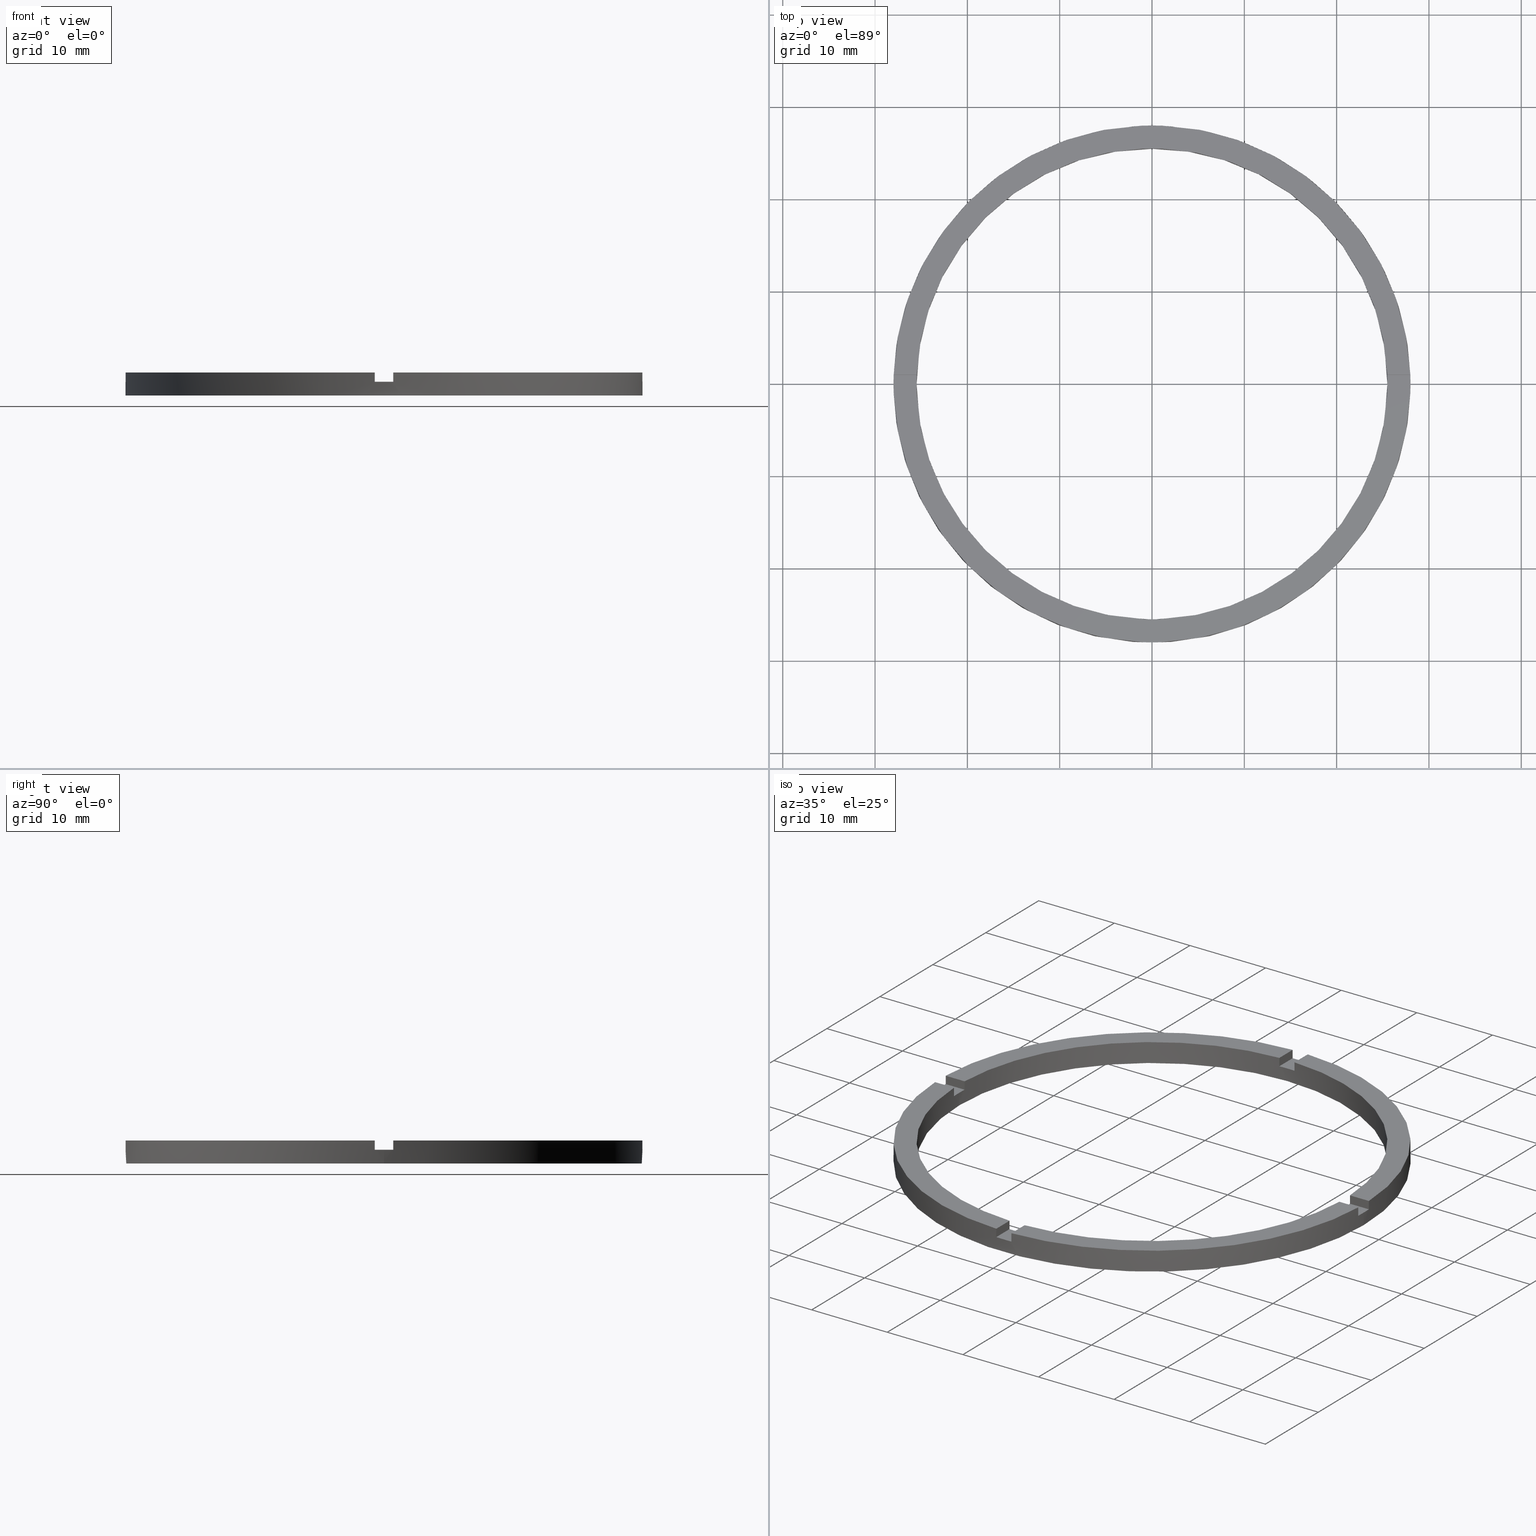
[diagram: canonical four-view strip — front | top / right | iso, engineering-drawing reading convention]
A machine part, canonical four-view strip (front | top / right | iso — engineering-drawing reading convention). The complete STEP part file that produces these views, byte-faithful:
ISO-10303-21;
HEADER;
FILE_DESCRIPTION (( 'STEP AP203' ),
    '1' );
FILE_NAME ('514116.step',
    '2024-12-26T02:39:02',
    ( 'MSI' ),
    ( '' ),
    'SwSTEP 2.0',
    'SolidWorks 2020',
    '' );
FILE_SCHEMA (( 'CONFIG_CONTROL_DESIGN' ));
ENDSEC;

DATA;
#1 = ORIENTED_EDGE ( 'NONE', *, *, #582, .T. ) ;
#2 = AXIS2_PLACEMENT_3D ( 'NONE', #164, #408, #340 ) ;
#3 = DIRECTION ( 'NONE',  ( 0.000000000000000000, 0.000000000000000000, 1.000000000000000000 ) ) ;
#4 = EDGE_CURVE ( 'NONE', #600, #767, #463, .T. ) ;
#5 = CARTESIAN_POINT ( 'NONE',  ( 0.9999999999998389066, -18.00000000000018119, 1.500000000000000000 ) ) ;
#6 = CARTESIAN_POINT ( 'NONE',  ( 0.000000000000000000, 0.000000000000000000, 2.500000000000000000 ) ) ;
#7 = ORIENTED_EDGE ( 'NONE', *, *, #49, .T. ) ;
#8 = CARTESIAN_POINT ( 'NONE',  ( 0.000000000000000000, 0.000000000000000000, 0.000000000000000000 ) ) ;
#9 = ORIENTED_EDGE ( 'NONE', *, *, #267, .T. ) ;
#10 = DIRECTION ( 'NONE',  ( 0.000000000000000000, 0.000000000000000000, 1.000000000000000000 ) ) ;
#11 = CARTESIAN_POINT ( 'NONE',  ( 0.000000000000000000, 0.000000000000000000, 1.500000000000000000 ) ) ;
#12 = DIRECTION ( 'NONE',  ( 0.000000000000000000, 0.000000000000000000, 1.000000000000000000 ) ) ;
#13 = EDGE_CURVE ( 'NONE', #81, #337, #721, .T. ) ;
#14 = EDGE_CURVE ( 'NONE', #252, #517, #709, .T. ) ;
#15 = CARTESIAN_POINT ( 'NONE',  ( -1.000000000000160316, -25.48038461248180653, 1.500000000000000000 ) ) ;
#16 = VERTEX_POINT ( 'NONE', #401 ) ;
#17 = DIRECTION ( 'NONE',  ( 1.000000000000000000, 0.000000000000000000, -0.000000000000000000 ) ) ;
#18 = VERTEX_POINT ( 'NONE', #433 ) ;
#19 = CARTESIAN_POINT ( 'NONE',  ( -25.50000000000000000, 0.000000000000000000, 2.500000000000000000 ) ) ;
#20 = EDGE_LOOP ( 'NONE', ( #7, #231, #777, #761 ) ) ;
#21 = AXIS2_PLACEMENT_3D ( 'NONE', #50, #244, #193 ) ;
#22 = DIRECTION ( 'NONE',  ( -1.000000000000000000, -4.336808689942018352E-17, 0.000000000000000000 ) ) ;
#23 = CARTESIAN_POINT ( 'NONE',  ( 0.9999999999999735767, 27.98213715926644696, 2.500000000000000000 ) ) ;
#24 = ORIENTED_EDGE ( 'NONE', *, *, #511, .T. ) ;
#25 = CARTESIAN_POINT ( 'NONE',  ( -18.00000000000018474, 0.9999999999999749090, 1.500000000000000000 ) ) ;
#26 = ADVANCED_FACE ( 'NONE', ( #192 ), #398, .F. ) ;
#27 = EDGE_CURVE ( 'NONE', #476, #204, #451, .T. ) ;
#28 = CARTESIAN_POINT ( 'NONE',  ( 27.98213715926645051, 0.9999999999998430145, 1.500000000000000000 ) ) ;
#29 = ORIENTED_EDGE ( 'NONE', *, *, #4, .F. ) ;
#30 = DIRECTION ( 'NONE',  ( 1.000000000000000000, 0.000000000000000000, 0.000000000000000000 ) ) ;
#31 = ORIENTED_EDGE ( 'NONE', *, *, #303, .T. ) ;
#32 = VERTEX_POINT ( 'NONE', #650 ) ;
#33 = CARTESIAN_POINT ( 'NONE',  ( 18.00000000000000000, -1.000000000000157430, 1.500000000000000000 ) ) ;
#34 = DIRECTION ( 'NONE',  ( -1.000000000000000000, -4.336808689942018352E-17, -0.000000000000000000 ) ) ;
#35 = CARTESIAN_POINT ( 'NONE',  ( 0.9999999999999735767, 25.48038461248181363, 2.500000000000000000 ) ) ;
#36 = APPROVAL_STATUS ( 'not_yet_approved' ) ;
#37 = PRODUCT_DEFINITION ( 'δ֪', '', #183, #700 ) ;
#38 = CARTESIAN_POINT ( 'NONE',  ( 0.000000000000000000, 0.000000000000000000, 1.500000000000000000 ) ) ;
#39 = CARTESIAN_POINT ( 'NONE',  ( 0.000000000000000000, 0.000000000000000000, 2.500000000000000000 ) ) ;
#40 = CC_DESIGN_DATE_AND_TIME_ASSIGNMENT ( #608, #412, ( #564 ) ) ;
#41 = EDGE_CURVE ( 'NONE', #32, #81, #713, .T. ) ;
#42 = AXIS2_PLACEMENT_3D ( 'NONE', #439, #690, #152 ) ;
#43 = LINE ( 'NONE', #288, #590 ) ;
#44 = VECTOR ( 'NONE', #462, 1000.000000000000000 ) ;
#45 = CIRCLE ( 'NONE', #179, 25.50000000000000000 ) ;
#46 = APPROVAL_ROLE ( '' ) ;
#47 = LINE ( 'NONE', #404, #55 ) ;
#48 = CIRCLE ( 'NONE', #664, 28.00000000000000000 ) ;
#49 = EDGE_CURVE ( 'NONE', #70, #355, #715, .T. ) ;
#50 = CARTESIAN_POINT ( 'NONE',  ( 0.000000000000000000, 0.000000000000000000, 1.500000000000000000 ) ) ;
#51 = EDGE_CURVE ( 'NONE', #258, #767, #639, .T. ) ;
#52 = VECTOR ( 'NONE', #34, 1000.000000000000000 ) ;
#53 = VECTOR ( 'NONE', #737, 1000.000000000000000 ) ;
#54 = DIRECTION ( 'NONE',  ( 1.000000000000000000, 0.000000000000000000, 0.000000000000000000 ) ) ;
#55 = VECTOR ( 'NONE', #157, 1000.000000000000000 ) ;
#56 = FACE_OUTER_BOUND ( 'NONE', #503, .T. ) ;
#57 = LINE ( 'NONE', #540, #68 ) ;
#58 = CIRCLE ( 'NONE', #383, 25.50000000000000000 ) ;
#59 = CARTESIAN_POINT ( 'NONE',  ( 0.000000000000000000, 0.000000000000000000, 0.000000000000000000 ) ) ;
#60 = FACE_OUTER_BOUND ( 'NONE', #373, .T. ) ;
#61 = FACE_OUTER_BOUND ( 'NONE', #246, .T. ) ;
#62 = CIRCLE ( 'NONE', #314, 25.50000000000000000 ) ;
#63 = ORIENTED_EDGE ( 'NONE', *, *, #670, .F. ) ;
#64 = FACE_OUTER_BOUND ( 'NONE', #241, .T. ) ;
#65 = ORIENTED_EDGE ( 'NONE', *, *, #523, .F. ) ;
#66 = CIRCLE ( 'NONE', #569, 28.00000000000000000 ) ;
#67 = ADVANCED_FACE ( 'NONE', ( #125 ), #518, .T. ) ;
#68 = VECTOR ( 'NONE', #648, 1000.000000000000000 ) ;
#69 = DIRECTION ( 'NONE',  ( 1.000000000000000000, 4.336808689942018352E-17, 0.000000000000000000 ) ) ;
#70 = VERTEX_POINT ( 'NONE', #256 ) ;
#71 = FACE_OUTER_BOUND ( 'NONE', #495, .T. ) ;
#72 = EDGE_LOOP ( 'NONE', ( #287, #494, #363, #759, #486, #477 ) ) ;
#73 = FACE_OUTER_BOUND ( 'NONE', #20, .T. ) ;
#74 = DIRECTION ( 'NONE',  ( 0.000000000000000000, 0.000000000000000000, 1.000000000000000000 ) ) ;
#75 = AXIS2_PLACEMENT_3D ( 'NONE', #680, #426, #146 ) ;
#76 = LOCAL_TIME ( 10, 39, 2.000000000000000000, #624 ) ;
#77 = CARTESIAN_POINT ( 'NONE',  ( 0.000000000000000000, 0.000000000000000000, 1.500000000000000000 ) ) ;
#78 = CARTESIAN_POINT ( 'NONE',  ( 25.50000000000000000, 3.122849337825750222E-15, 1.500000000000000000 ) ) ;
#79 = ADVANCED_FACE ( 'NONE', ( #369 ), #372, .T. ) ;
#80 = DIRECTION ( 'NONE',  ( -1.000000000000000000, 0.000000000000000000, 0.000000000000000000 ) ) ;
#81 = VERTEX_POINT ( 'NONE', #117 ) ;
#82 = ORIENTED_EDGE ( 'NONE', *, *, #145, .F. ) ;
#83 = DIRECTION ( 'NONE',  ( 0.000000000000000000, 0.000000000000000000, 1.000000000000000000 ) ) ;
#84 = DATE_AND_TIME ( #92, #95 ) ;
#85 = ORIENTED_EDGE ( 'NONE', *, *, #763, .F. ) ;
#86 = VERTEX_POINT ( 'NONE', #221 ) ;
#87 = LOCAL_TIME ( 10, 39, 2.000000000000000000, #596 ) ;
#88 = DIRECTION ( 'NONE',  ( -1.301042606982605567E-16, 1.000000000000000000, 0.000000000000000000 ) ) ;
#89 = DIRECTION ( 'NONE',  ( -0.000000000000000000, -0.000000000000000000, -1.000000000000000000 ) ) ;
#90 = EDGE_LOOP ( 'NONE', ( #207, #9, #498, #119 ) ) ;
#91 = EDGE_CURVE ( 'NONE', #252, #453, #379, .T. ) ;
#92 = CALENDAR_DATE ( 2024, 26, 12 ) ;
#93 = ORIENTED_EDGE ( 'NONE', *, *, #580, .F. ) ;
#94 = CARTESIAN_POINT ( 'NONE',  ( -27.98213715926644340, -1.000000000000026867, 2.500000000000000000 ) ) ;
#95 = LOCAL_TIME ( 10, 39, 2.000000000000000000, #387 ) ;
#96 = EDGE_CURVE ( 'NONE', #215, #600, #354, .T. ) ;
#97 = VERTEX_POINT ( 'NONE', #285 ) ;
#98 = DIRECTION ( 'NONE',  ( 0.000000000000000000, 0.000000000000000000, 1.000000000000000000 ) ) ;
#99 = LINE ( 'NONE', #435, #623 ) ;
#100 = LINE ( 'NONE', #250, #619 ) ;
#101 = CARTESIAN_POINT ( 'NONE',  ( 0.000000000000000000, 0.000000000000000000, 2.500000000000000000 ) ) ;
#102 = AXIS2_PLACEMENT_3D ( 'NONE', #170, #416, #280 ) ;
#103 = VERTEX_POINT ( 'NONE', #410 ) ;
#104 = FACE_OUTER_BOUND ( 'NONE', #209, .T. ) ;
#105 = AXIS2_PLACEMENT_3D ( 'NONE', #122, #174, #643 ) ;
#106 = ORIENTED_EDGE ( 'NONE', *, *, #399, .F. ) ;
#107 = CARTESIAN_POINT ( 'NONE',  ( 0.000000000000000000, 0.000000000000000000, 0.000000000000000000 ) ) ;
#108 = LINE ( 'NONE', #306, #367 ) ;
#109 = ADVANCED_FACE ( 'NONE', ( #604 ), #128, .T. ) ;
#110 = ORIENTED_EDGE ( 'NONE', *, *, #622, .T. ) ;
#111 =( LENGTH_UNIT ( ) NAMED_UNIT ( * ) SI_UNIT ( .MILLI., .METRE. ) );
#112 = VECTOR ( 'NONE', #168, 1000.000000000000000 ) ;
#113 = PERSON_AND_ORGANIZATION ( #698, #385 ) ;
#114 = EDGE_LOOP ( 'NONE', ( #235, #227, #65, #491 ) ) ;
#115 = VECTOR ( 'NONE', #682, 1000.000000000000000 ) ;
#116 = COORDINATED_UNIVERSAL_TIME_OFFSET ( 8, 0, .AHEAD. ) ;
#117 = CARTESIAN_POINT ( 'NONE',  ( -27.98213715926644696, 0.9999999999999731326, 1.500000000000000000 ) ) ;
#118 = SECURITY_CLASSIFICATION_LEVEL ( 'unclassified' ) ;
#119 = ORIENTED_EDGE ( 'NONE', *, *, #171, .F. ) ;
#120 = LINE ( 'NONE', #300, #115 ) ;
#121 = ORIENTED_EDGE ( 'NONE', *, *, #27, .T. ) ;
#122 = CARTESIAN_POINT ( 'NONE',  ( 0.000000000000000000, 0.000000000000000000, 2.500000000000000000 ) ) ;
#123 = CIRCLE ( 'NONE', #352, 28.00000000000000000 ) ;
#124 = APPROVAL_PERSON_ORGANIZATION ( #636, #747, #529 ) ;
#125 = FACE_OUTER_BOUND ( 'NONE', #519, .T. ) ;
#126 = LINE ( 'NONE', #452, #607 ) ;
#127 = DATE_AND_TIME ( #378, #87 ) ;
#128 = PLANE ( 'NONE',  #102 ) ;
#129 = MECHANICAL_CONTEXT ( 'NONE', #141, 'mechanical' ) ;
#130 = ORIENTED_EDGE ( 'NONE', *, *, #673, .T. ) ;
#131 = LINE ( 'NONE', #425, #359 ) ;
#132 = DIRECTION ( 'NONE',  ( 0.000000000000000000, 0.000000000000000000, 1.000000000000000000 ) ) ;
#133 = PERSON_AND_ORGANIZATION ( #698, #385 ) ;
#134 = APPROVAL_PERSON_ORGANIZATION ( #641, #461, #46 ) ;
#135 = DIRECTION ( 'NONE',  ( -0.000000000000000000, -0.000000000000000000, -1.000000000000000000 ) ) ;
#136 = VECTOR ( 'NONE', #289, 1000.000000000000000 ) ;
#137 = CARTESIAN_POINT ( 'NONE',  ( 28.00000000000000000, 3.429011037612589276E-15, 2.500000000000000000 ) ) ;
#138 = LINE ( 'NONE', #705, #136 ) ;
#139 = CC_DESIGN_SECURITY_CLASSIFICATION ( #564, ( #183 ) ) ;
#140 = AXIS2_PLACEMENT_3D ( 'NONE', #675, #248, #142 ) ;
#141 = APPLICATION_CONTEXT ( 'configuration controlled 3d designs of mechanical parts and assemblies' ) ;
#142 = DIRECTION ( 'NONE',  ( -1.000000000000000000, -1.734723475976807341E-16, 0.000000000000000000 ) ) ;
#143 = EDGE_CURVE ( 'NONE', #215, #204, #126, .T. ) ;
#144 = CARTESIAN_POINT ( 'NONE',  ( -28.00000000000000000, 0.000000000000000000, 1.500000000000000000 ) ) ;
#145 = EDGE_CURVE ( 'NONE', #222, #769, #382, .T. ) ;
#146 = DIRECTION ( 'NONE',  ( 1.000000000000000000, 0.000000000000000000, 0.000000000000000000 ) ) ;
#147 = AXIS2_PLACEMENT_3D ( 'NONE', #101, #334, #753 ) ;
#148 = ADVANCED_FACE ( 'NONE', ( #356 ), #406, .F. ) ;
#149 = CARTESIAN_POINT ( 'NONE',  ( 0.000000000000000000, 0.000000000000000000, 1.500000000000000000 ) ) ;
#150 = EDGE_CURVE ( 'NONE', #103, #18, #99, .T. ) ;
#151 = CARTESIAN_POINT ( 'NONE',  ( 0.000000000000000000, 0.000000000000000000, 2.500000000000000000 ) ) ;
#152 = DIRECTION ( 'NONE',  ( 1.000000000000000000, 0.000000000000000000, -0.000000000000000000 ) ) ;
#153 = DIRECTION ( 'NONE',  ( 0.000000000000000000, 0.000000000000000000, 1.000000000000000000 ) ) ;
#154 = PLANE ( 'NONE',  #480 ) ;
#155 = DIRECTION ( 'NONE',  ( 1.000000000000000000, 4.336808689942018352E-17, 0.000000000000000000 ) ) ;
#156 = CARTESIAN_POINT ( 'NONE',  ( 18.00000000000000000, 0.9999999999998425704, 2.500000000000000000 ) ) ;
#157 = DIRECTION ( 'NONE',  ( 1.000000000000000000, 1.734723475976807341E-16, -0.000000000000000000 ) ) ;
#158 = DIRECTION ( 'NONE',  ( -1.000000000000000000, -1.734723475976807341E-16, 0.000000000000000000 ) ) ;
#159 = CARTESIAN_POINT ( 'NONE',  ( 0.000000000000000000, 0.000000000000000000, 1.500000000000000000 ) ) ;
#160 = CARTESIAN_POINT ( 'NONE',  ( 0.000000000000000000, 0.000000000000000000, 1.500000000000000000 ) ) ;
#161 = DIRECTION ( 'NONE',  ( 1.000000000000000000, 1.734723475976807341E-16, -0.000000000000000000 ) ) ;
#162 = CC_DESIGN_APPROVAL ( #461, ( #37 ) ) ;
#163 = EDGE_CURVE ( 'NONE', #18, #274, #635, .T. ) ;
#164 = CARTESIAN_POINT ( 'NONE',  ( 0.9999999999999735767, 18.00000000000000355, 1.500000000000000000 ) ) ;
#165 = AXIS2_PLACEMENT_3D ( 'NONE', #553, #264, #22 ) ;
#166 = EDGE_CURVE ( 'NONE', #706, #750, #350, .T. ) ;
#167 = DIRECTION ( 'NONE',  ( 1.000000000000000000, 0.000000000000000000, 0.000000000000000000 ) ) ;
#168 = DIRECTION ( 'NONE',  ( 0.000000000000000000, 0.000000000000000000, 1.000000000000000000 ) ) ;
#169 = DIRECTION ( 'NONE',  ( -0.000000000000000000, 0.000000000000000000, 1.000000000000000000 ) ) ;
#170 = CARTESIAN_POINT ( 'NONE',  ( 0.000000000000000000, 0.000000000000000000, 1.500000000000000000 ) ) ;
#171 = EDGE_CURVE ( 'NONE', #258, #86, #374, .T. ) ;
#172 = CARTESIAN_POINT ( 'NONE',  ( 0.000000000000000000, 0.000000000000000000, 1.500000000000000000 ) ) ;
#173 = EDGE_CURVE ( 'NONE', #512, #769, #123, .T. ) ;
#174 = DIRECTION ( 'NONE',  ( 0.000000000000000000, 0.000000000000000000, 1.000000000000000000 ) ) ;
#175 = DIRECTION ( 'NONE',  ( -1.000000000000000000, 0.000000000000000000, 0.000000000000000000 ) ) ;
#176 = AXIS2_PLACEMENT_3D ( 'NONE', #321, #640, #80 ) ;
#177 = CARTESIAN_POINT ( 'NONE',  ( 0.000000000000000000, 0.000000000000000000, 2.500000000000000000 ) ) ;
#178 = PERSON_AND_ORGANIZATION_ROLE ( 'creator' ) ;
#179 = AXIS2_PLACEMENT_3D ( 'NONE', #8, #74, #54 ) ;
#180 = DIRECTION ( 'NONE',  ( 4.336808689942018352E-17, -1.000000000000000000, 0.000000000000000000 ) ) ;
#181 = CYLINDRICAL_SURFACE ( 'NONE', #176, 25.50000000000000000 ) ;
#182 = FACE_OUTER_BOUND ( 'NONE', #599, .T. ) ;
#183 = PRODUCT_DEFINITION_FORMATION_WITH_SPECIFIED_SOURCE ( '�κ�', '', #524, .NOT_KNOWN. ) ;
#184 = CARTESIAN_POINT ( 'NONE',  ( 0.9999999999998389066, -18.00000000000018119, 2.500000000000000000 ) ) ;
#185 = EDGE_CURVE ( 'NONE', #222, #282, #377, .T. ) ;
#186 = ORIENTED_EDGE ( 'NONE', *, *, #296, .T. ) ;
#187 = LINE ( 'NONE', #200, #707 ) ;
#188 = DIRECTION ( 'NONE',  ( 1.000000000000000000, 0.000000000000000000, -0.000000000000000000 ) ) ;
#189 = VECTOR ( 'NONE', #509, 1000.000000000000000 ) ;
#190 = AXIS2_PLACEMENT_3D ( 'NONE', #177, #672, #581 ) ;
#191 = LINE ( 'NONE', #683, #189 ) ;
#192 = FACE_OUTER_BOUND ( 'NONE', #90, .T. ) ;
#193 = DIRECTION ( 'NONE',  ( 1.000000000000000000, 0.000000000000000000, 0.000000000000000000 ) ) ;
#194 = ORIENTED_EDGE ( 'NONE', *, *, #511, .F. ) ;
#195 = VECTOR ( 'NONE', #158, 1000.000000000000000 ) ;
#196 = ORIENTED_EDGE ( 'NONE', *, *, #748, .F. ) ;
#197 = PLANE ( 'NONE',  #42 ) ;
#198 = DIRECTION ( 'NONE',  ( 1.000000000000000000, 0.000000000000000000, 0.000000000000000000 ) ) ;
#199 = CARTESIAN_POINT ( 'NONE',  ( 18.00000000000000000, 0.9999999999998425704, 1.500000000000000000 ) ) ;
#200 = CARTESIAN_POINT ( 'NONE',  ( -25.48038461248181363, 0.9999999999999735767, 2.500000000000000000 ) ) ;
#201 = DIRECTION ( 'NONE',  ( 1.000000000000000000, 0.000000000000000000, 0.000000000000000000 ) ) ;
#202 = CARTESIAN_POINT ( 'NONE',  ( 0.000000000000000000, 0.000000000000000000, 2.500000000000000000 ) ) ;
#203 = DIRECTION ( 'NONE',  ( 1.000000000000000000, 0.000000000000000000, 0.000000000000000000 ) ) ;
#204 = VERTEX_POINT ( 'NONE', #638 ) ;
#205 =( NAMED_UNIT ( * ) SI_UNIT ( $, .STERADIAN. ) SOLID_ANGLE_UNIT ( ) );
#206 = EDGE_CURVE ( 'NONE', #236, #543, #131, .T. ) ;
#207 = ORIENTED_EDGE ( 'NONE', *, *, #748, .T. ) ;
#208 = CARTESIAN_POINT ( 'NONE',  ( 0.000000000000000000, 0.000000000000000000, 2.500000000000000000 ) ) ;
#209 = EDGE_LOOP ( 'NONE', ( #776, #615, #31, #29 ) ) ;
#210 = ORIENTED_EDGE ( 'NONE', *, *, #718, .F. ) ;
#211 = CARTESIAN_POINT ( 'NONE',  ( 0.000000000000000000, 0.000000000000000000, 2.500000000000000000 ) ) ;
#212 = ORIENTED_EDGE ( 'NONE', *, *, #449, .T. ) ;
#213 = ORIENTED_EDGE ( 'NONE', *, *, #91, .F. ) ;
#214 = DIRECTION ( 'NONE',  ( 1.000000000000000000, 4.336808689942018352E-17, 0.000000000000000000 ) ) ;
#215 = VERTEX_POINT ( 'NONE', #782 ) ;
#216 = DIRECTION ( 'NONE',  ( 0.000000000000000000, 0.000000000000000000, 1.000000000000000000 ) ) ;
#217 = ORIENTED_EDGE ( 'NONE', *, *, #51, .T. ) ;
#218 = ORIENTED_EDGE ( 'NONE', *, *, #185, .F. ) ;
#219 = AXIS2_PLACEMENT_3D ( 'NONE', #160, #516, #693 ) ;
#220 = EDGE_LOOP ( 'NONE', ( #770, #239, #341, #376, #755, #610, #729, #475, #218, #754, #489, #233 ) ) ;
#221 = CARTESIAN_POINT ( 'NONE',  ( 0.9999999999998402389, -27.98213715926645051, 1.500000000000000000 ) ) ;
#222 = VERTEX_POINT ( 'NONE', #546 ) ;
#223 = CARTESIAN_POINT ( 'NONE',  ( 0.9999999999999735767, 25.48038461248181363, 2.500000000000000000 ) ) ;
#224 = ORIENTED_EDGE ( 'NONE', *, *, #580, .T. ) ;
#225 = APPROVAL ( #36, 'δָ��' ) ;
#226 = ORIENTED_EDGE ( 'NONE', *, *, #14, .F. ) ;
#227 = ORIENTED_EDGE ( 'NONE', *, *, #242, .T. ) ;
#228 = ORIENTED_EDGE ( 'NONE', *, *, #389, .F. ) ;
#229 = CARTESIAN_POINT ( 'NONE',  ( 0.000000000000000000, 0.000000000000000000, 2.500000000000000000 ) ) ;
#230 = EDGE_CURVE ( 'NONE', #478, #458, #616, .T. ) ;
#231 = ORIENTED_EDGE ( 'NONE', *, *, #389, .T. ) ;
#232 = PERSON_AND_ORGANIZATION_ROLE ( 'design_owner' ) ;
#233 = ORIENTED_EDGE ( 'NONE', *, *, #670, .T. ) ;
#234 = AXIS2_PLACEMENT_3D ( 'NONE', #151, #299, #679 ) ;
#235 = ORIENTED_EDGE ( 'NONE', *, *, #419, .T. ) ;
#236 = VERTEX_POINT ( 'NONE', #144 ) ;
#237 = ORIENTED_EDGE ( 'NONE', *, *, #774, .T. ) ;
#238 = PERSON_AND_ORGANIZATION_ROLE ( 'design_supplier' ) ;
#239 = ORIENTED_EDGE ( 'NONE', *, *, #592, .T. ) ;
#240 = ORIENTED_EDGE ( 'NONE', *, *, #41, .T. ) ;
#241 = EDGE_LOOP ( 'NONE', ( #467, #723, #279, #1 ) ) ;
#242 = EDGE_CURVE ( 'NONE', #86, #506, #100, .T. ) ;
#243 = ORIENTED_EDGE ( 'NONE', *, *, #270, .F. ) ;
#244 = DIRECTION ( 'NONE',  ( 0.000000000000000000, -0.000000000000000000, 1.000000000000000000 ) ) ;
#245 = ORIENTED_EDGE ( 'NONE', *, *, #592, .F. ) ;
#246 = EDGE_LOOP ( 'NONE', ( #744, #24, #243, #63 ) ) ;
#247 = ORIENTED_EDGE ( 'NONE', *, *, #303, .F. ) ;
#248 = DIRECTION ( 'NONE',  ( -1.734723475976807341E-16, 1.000000000000000000, 0.000000000000000000 ) ) ;
#249 = ORIENTED_EDGE ( 'NONE', *, *, #393, .F. ) ;
#250 = CARTESIAN_POINT ( 'NONE',  ( 0.9999999999998389066, -18.00000000000018119, 1.500000000000000000 ) ) ;
#251 = ORIENTED_EDGE ( 'NONE', *, *, #173, .T. ) ;
#252 = VERTEX_POINT ( 'NONE', #538 ) ;
#253 = DIRECTION ( 'NONE',  ( -1.301042606982605567E-16, 1.000000000000000000, -0.000000000000000000 ) ) ;
#254 = ADVANCED_FACE ( 'NONE', ( #104 ), #154, .F. ) ;
#255 = VERTEX_POINT ( 'NONE', #78 ) ;
#256 = CARTESIAN_POINT ( 'NONE',  ( -27.98213715926644340, -1.000000000000026867, 2.500000000000000000 ) ) ;
#257 = CARTESIAN_POINT ( 'NONE',  ( 0.9999999999998402389, -27.98213715926645051, 2.500000000000000000 ) ) ;
#258 = VERTEX_POINT ( 'NONE', #483 ) ;
#259 = DIRECTION ( 'NONE',  ( 1.734723475976807341E-16, -1.000000000000000000, 0.000000000000000000 ) ) ;
#260 = EDGE_CURVE ( 'NONE', #468, #16, #108, .T. ) ;
#261 = CARTESIAN_POINT ( 'NONE',  ( 18.00000000000000000, -1.000000000000157430, 1.500000000000000000 ) ) ;
#262 = ORIENTED_EDGE ( 'NONE', *, *, #697, .F. ) ;
#263 = ORIENTED_EDGE ( 'NONE', *, *, #419, .F. ) ;
#264 = DIRECTION ( 'NONE',  ( -4.336808689942018352E-17, 1.000000000000000000, 0.000000000000000000 ) ) ;
#265 = EDGE_CURVE ( 'NONE', #255, #606, #626, .T. ) ;
#266 = DIRECTION ( 'NONE',  ( 1.000000000000000000, 0.000000000000000000, 0.000000000000000000 ) ) ;
#267 = EDGE_CURVE ( 'NONE', #476, #506, #120, .T. ) ;
#268 = DIRECTION ( 'NONE',  ( 0.000000000000000000, -0.000000000000000000, 1.000000000000000000 ) ) ;
#269 = DIRECTION ( 'NONE',  ( -1.000000000000000000, 0.000000000000000000, 0.000000000000000000 ) ) ;
#270 = EDGE_CURVE ( 'NONE', #458, #371, #440, .T. ) ;
#271 = DIRECTION ( 'NONE',  ( -1.000000000000000000, -1.301042606982605567E-16, 0.000000000000000000 ) ) ;
#272 = ORIENTED_EDGE ( 'NONE', *, *, #206, .T. ) ;
#273 = AXIS2_PLACEMENT_3D ( 'NONE', #11, #611, #724 ) ;
#274 = VERTEX_POINT ( 'NONE', #625 ) ;
#275 = PLANE ( 'NONE',  #165 ) ;
#276 = CARTESIAN_POINT ( 'NONE',  ( 0.000000000000000000, 0.000000000000000000, 2.500000000000000000 ) ) ;
#277 = AXIS2_PLACEMENT_3D ( 'NONE', #77, #268, #507 ) ;
#278 = ADVANCED_FACE ( 'NONE', ( #441 ), #181, .F. ) ;
#279 = ORIENTED_EDGE ( 'NONE', *, *, #49, .F. ) ;
#280 = DIRECTION ( 'NONE',  ( 1.000000000000000000, 0.000000000000000000, -0.000000000000000000 ) ) ;
#281 = DIRECTION ( 'NONE',  ( 0.000000000000000000, 0.000000000000000000, 1.000000000000000000 ) ) ;
#282 = VERTEX_POINT ( 'NONE', #743 ) ;
#283 = ORIENTED_EDGE ( 'NONE', *, *, #515, .T. ) ;
#284 = DIRECTION ( 'NONE',  ( 1.000000000000000000, 0.000000000000000000, 0.000000000000000000 ) ) ;
#285 = CARTESIAN_POINT ( 'NONE',  ( 25.48038461248181719, 0.9999999999998427924, 2.500000000000000000 ) ) ;
#286 = CARTESIAN_POINT ( 'NONE',  ( 0.000000000000000000, 0.000000000000000000, 1.500000000000000000 ) ) ;
#287 = ORIENTED_EDGE ( 'NONE', *, *, #327, .T. ) ;
#288 = CARTESIAN_POINT ( 'NONE',  ( 0.9999999999999735767, 18.00000000000000355, 2.500000000000000000 ) ) ;
#289 = DIRECTION ( 'NONE',  ( -0.000000000000000000, -0.000000000000000000, -1.000000000000000000 ) ) ;
#290 = DIRECTION ( 'NONE',  ( 0.000000000000000000, 1.000000000000000000, 0.000000000000000000 ) ) ;
#291 = CC_DESIGN_PERSON_AND_ORGANIZATION_ASSIGNMENT ( #375, #417, ( #183 ) ) ;
#292 = EDGE_LOOP ( 'NONE', ( #262, #731, #539, #595 ) ) ;
#293 = AXIS2_PLACEMENT_3D ( 'NONE', #107, #661, #438 ) ;
#294 = EDGE_LOOP ( 'NONE', ( #735, #738, #368, #481 ) ) ;
#295 = EDGE_CURVE ( 'NONE', #282, #517, #191, .T. ) ;
#296 = EDGE_CURVE ( 'NONE', #32, #274, #187, .T. ) ;
#297 = PLANE ( 'NONE',  #140 ) ;
#298 = CARTESIAN_POINT ( 'NONE',  ( 27.98213715926643985, -1.000000000000156986, 2.500000000000000000 ) ) ;
#299 = DIRECTION ( 'NONE',  ( -0.000000000000000000, -0.000000000000000000, -1.000000000000000000 ) ) ;
#300 = CARTESIAN_POINT ( 'NONE',  ( 0.9999999999998397948, -25.48038461248181719, 2.500000000000000000 ) ) ;
#301 = VECTOR ( 'NONE', #253, 1000.000000000000000 ) ;
#302 = CIRCLE ( 'NONE', #293, 28.00000000000000000 ) ;
#303 = EDGE_CURVE ( 'NONE', #204, #767, #708, .T. ) ;
#304 = DIRECTION ( 'NONE',  ( 1.000000000000000000, 0.000000000000000000, 0.000000000000000000 ) ) ;
#305 = FACE_OUTER_BOUND ( 'NONE', #587, .T. ) ;
#306 = CARTESIAN_POINT ( 'NONE',  ( -1.000000000000161204, -18.00000000000018119, 2.500000000000000000 ) ) ;
#307 = CIRCLE ( 'NONE', #411, 25.50000000000000000 ) ;
#308 = LINE ( 'NONE', #137, #44 ) ;
#309 = CIRCLE ( 'NONE', #514, 28.00000000000000000 ) ;
#310 = DIRECTION ( 'NONE',  ( -0.000000000000000000, -0.000000000000000000, -1.000000000000000000 ) ) ;
#311 = VECTOR ( 'NONE', #762, 1000.000000000000000 ) ;
#312 = CARTESIAN_POINT ( 'NONE',  ( -27.98213715926644696, 0.9999999999999731326, 2.500000000000000000 ) ) ;
#313 = VECTOR ( 'NONE', #588, 1000.000000000000000 ) ;
#314 = AXIS2_PLACEMENT_3D ( 'NONE', #149, #493, #783 ) ;
#315 = LINE ( 'NONE', #654, #326 ) ;
#316 = CARTESIAN_POINT ( 'NONE',  ( -1.000000000000026423, 25.48038461248181008, 1.500000000000000000 ) ) ;
#317 = CIRCLE ( 'NONE', #714, 28.00000000000000000 ) ;
#318 = DIRECTION ( 'NONE',  ( 0.000000000000000000, 0.000000000000000000, 1.000000000000000000 ) ) ;
#319 = FACE_OUTER_BOUND ( 'NONE', #114, .T. ) ;
#320 = DIRECTION ( 'NONE',  ( 0.000000000000000000, 0.000000000000000000, 1.000000000000000000 ) ) ;
#321 = CARTESIAN_POINT ( 'NONE',  ( 0.000000000000000000, 0.000000000000000000, 2.500000000000000000 ) ) ;
#322 = VECTOR ( 'NONE', #531, 1000.000000000000000 ) ;
#323 = VECTOR ( 'NONE', #454, 1000.000000000000000 ) ;
#324 = CARTESIAN_POINT ( 'NONE',  ( 0.9999999999999735767, 18.00000000000000355, 1.500000000000000000 ) ) ;
#325 = CC_DESIGN_PERSON_AND_ORGANIZATION_ASSIGNMENT ( #133, #178, ( #37 ) ) ;
#326 = VECTOR ( 'NONE', #310, 1000.000000000000000 ) ;
#327 = EDGE_CURVE ( 'NONE', #600, #478, #448, .T. ) ;
#328 = CARTESIAN_POINT ( 'NONE',  ( 27.98213715926643985, -1.000000000000156986, 2.500000000000000000 ) ) ;
#329 = LINE ( 'NONE', #184, #301 ) ;
#330 = DIRECTION ( 'NONE',  ( 0.000000000000000000, 0.000000000000000000, 1.000000000000000000 ) ) ;
#331 = AXIS2_PLACEMENT_3D ( 'NONE', #678, #259, #432 ) ;
#332 = VERTEX_POINT ( 'NONE', #695 ) ;
#333 = ADVANCED_FACE ( 'NONE', ( #182 ), #710, .F. ) ;
#334 = DIRECTION ( 'NONE',  ( -0.000000000000000000, -0.000000000000000000, -1.000000000000000000 ) ) ;
#335 = LINE ( 'NONE', #94, #570 ) ;
#336 = CIRCLE ( 'NONE', #684, 25.50000000000000000 ) ;
#337 = VERTEX_POINT ( 'NONE', #312 ) ;
#338 = ORIENTED_EDGE ( 'NONE', *, *, #41, .F. ) ;
#339 = LOCAL_TIME ( 10, 39, 2.000000000000000000, #357 ) ;
#340 = DIRECTION ( 'NONE',  ( 0.000000000000000000, 0.000000000000000000, -1.000000000000000000 ) ) ;
#341 = ORIENTED_EDGE ( 'NONE', *, *, #677, .T. ) ;
#342 = APPROVAL_DATE_TIME ( #127, #747 ) ;
#343 = VERTEX_POINT ( 'NONE', #413 ) ;
#344 = EDGE_CURVE ( 'NONE', #255, #371, #444, .T. ) ;
#345 = ORIENTED_EDGE ( 'NONE', *, *, #143, .F. ) ;
#346 = DIRECTION ( 'NONE',  ( 1.000000000000000000, 0.000000000000000000, 0.000000000000000000 ) ) ;
#347 = ORIENTED_EDGE ( 'NONE', *, *, #420, .T. ) ;
#348 = CARTESIAN_POINT ( 'NONE',  ( 25.50000000000000000, 3.122849337825750222E-15, 0.000000000000000000 ) ) ;
#349 = ORIENTED_EDGE ( 'NONE', *, *, #27, .F. ) ;
#350 = LINE ( 'NONE', #19, #646 ) ;
#351 = DATE_AND_TIME ( #614, #370 ) ;
#352 = AXIS2_PLACEMENT_3D ( 'NONE', #6, #778, #730 ) ;
#353 = ORIENTED_EDGE ( 'NONE', *, *, #163, .F. ) ;
#354 = LINE ( 'NONE', #33, #642 ) ;
#355 = VERTEX_POINT ( 'NONE', #418 ) ;
#356 = FACE_OUTER_BOUND ( 'NONE', #294, .T. ) ;
#357 = COORDINATED_UNIVERSAL_TIME_OFFSET ( 8, 0, .AHEAD. ) ;
#358 = VERTEX_POINT ( 'NONE', #548 ) ;
#359 = VECTOR ( 'NONE', #601, 1000.000000000000000 ) ;
#360 = DIRECTION ( 'NONE',  ( 0.000000000000000000, 0.000000000000000000, 1.000000000000000000 ) ) ;
#361 = ORIENTED_EDGE ( 'NONE', *, *, #436, .T. ) ;
#362 = VECTOR ( 'NONE', #716, 1000.000000000000000 ) ;
#363 = ORIENTED_EDGE ( 'NONE', *, *, #270, .T. ) ;
#364 = VECTOR ( 'NONE', #662, 1000.000000000000000 ) ;
#365 = SHAPE_DEFINITION_REPRESENTATION ( #384, #558 ) ;
#366 = VERTEX_POINT ( 'NONE', #502 ) ;
#367 = VECTOR ( 'NONE', #541, 1000.000000000000000 ) ;
#368 = ORIENTED_EDGE ( 'NONE', *, *, #295, .F. ) ;
#369 = FACE_OUTER_BOUND ( 'NONE', #618, .T. ) ;
#370 = LOCAL_TIME ( 10, 39, 2.000000000000000000, #116 ) ;
#371 = VERTEX_POINT ( 'NONE', #552 ) ;
#372 = CYLINDRICAL_SURFACE ( 'NONE', #234, 28.00000000000000000 ) ;
#373 = EDGE_LOOP ( 'NONE', ( #736, #632, #224, #82 ) ) ;
#374 = LINE ( 'NONE', #257, #362 ) ;
#375 = PERSON_AND_ORGANIZATION ( #698, #385 ) ;
#376 = ORIENTED_EDGE ( 'NONE', *, *, #206, .F. ) ;
#377 = CIRCLE ( 'NONE', #21, 28.00000000000000000 ) ;
#378 = CALENDAR_DATE ( 2024, 26, 12 ) ;
#379 = LINE ( 'NONE', #35, #112 ) ;
#380 = CALENDAR_DATE ( 2024, 26, 12 ) ;
#381 = ORIENTED_EDGE ( 'NONE', *, *, #4, .T. ) ;
#382 = LINE ( 'NONE', #572, #364 ) ;
#383 = AXIS2_PLACEMENT_3D ( 'NONE', #276, #98, #30 ) ;
#384 = PRODUCT_DEFINITION_SHAPE ( 'NONE', 'NONE',  #37 ) ;
#385 = ORGANIZATION ( 'δָ��', 'δָ��', '' ) ;
#386 = PLANE ( 'NONE',  #603 ) ;
#387 = COORDINATED_UNIVERSAL_TIME_OFFSET ( 8, 0, .AHEAD. ) ;
#388 = CC_DESIGN_PERSON_AND_ORGANIZATION_ASSIGNMENT ( #113, #238, ( #183 ) ) ;
#389 = EDGE_CURVE ( 'NONE', #355, #343, #138, .T. ) ;
#390 = CYLINDRICAL_SURFACE ( 'NONE', #585, 28.00000000000000000 ) ;
#391 = ADVANCED_FACE ( 'NONE', ( #666 ), #390, .T. ) ;
#392 = DIRECTION ( 'NONE',  ( 0.000000000000000000, 0.000000000000000000, 1.000000000000000000 ) ) ;
#393 = EDGE_CURVE ( 'NONE', #504, #468, #396, .T. ) ;
#394 = AXIS2_PLACEMENT_3D ( 'NONE', #208, #330, #198 ) ;
#395 = PLANE ( 'NONE',  #537 ) ;
#396 = LINE ( 'NONE', #578, #660 ) ;
#397 = ADVANCED_FACE ( 'NONE', ( #405 ), #687, .F. ) ;
#398 = PLANE ( 'NONE',  #422 ) ;
#399 = EDGE_CURVE ( 'NONE', #512, #97, #667, .T. ) ;
#400 = CARTESIAN_POINT ( 'NONE',  ( 0.000000000000000000, 0.000000000000000000, 0.000000000000000000 ) ) ;
#401 = CARTESIAN_POINT ( 'NONE',  ( -1.000000000000159872, -27.98213715926643985, 2.500000000000000000 ) ) ;
#402 = DIRECTION ( 'NONE',  ( 0.000000000000000000, 0.000000000000000000, 1.000000000000000000 ) ) ;
#403 = DIRECTION ( 'NONE',  ( -0.000000000000000000, 0.000000000000000000, 1.000000000000000000 ) ) ;
#404 = CARTESIAN_POINT ( 'NONE',  ( -18.00000000000018474, -1.000000000000025091, 1.500000000000000000 ) ) ;
#405 = FACE_OUTER_BOUND ( 'NONE', #292, .T. ) ;
#406 = PLANE ( 'NONE',  #655 ) ;
#407 = CARTESIAN_POINT ( 'NONE',  ( 0.000000000000000000, 0.000000000000000000, 1.500000000000000000 ) ) ;
#408 = DIRECTION ( 'NONE',  ( 1.000000000000000000, -0.000000000000000000, 0.000000000000000000 ) ) ;
#409 = ADVANCED_FACE ( 'NONE', ( #593 ), #574, .T. ) ;
#410 = CARTESIAN_POINT ( 'NONE',  ( -1.000000000000026423, 27.98213715926644340, 2.500000000000000000 ) ) ;
#411 = AXIS2_PLACEMENT_3D ( 'NONE', #549, #83, #201 ) ;
#412 = DATE_TIME_ROLE ( 'classification_date' ) ;
#413 = CARTESIAN_POINT ( 'NONE',  ( -25.48038461248181008, -1.000000000000026423, 1.500000000000000000 ) ) ;
#414 = CC_DESIGN_PERSON_AND_ORGANIZATION_ASSIGNMENT ( #617, #232, ( #524 ) ) ;
#415 = CARTESIAN_POINT ( 'NONE',  ( -1.000000000000160316, -25.48038461248180653, 2.500000000000000000 ) ) ;
#416 = DIRECTION ( 'NONE',  ( 0.000000000000000000, 0.000000000000000000, 1.000000000000000000 ) ) ;
#417 = PERSON_AND_ORGANIZATION_ROLE ( 'creator' ) ;
#418 = CARTESIAN_POINT ( 'NONE',  ( -25.48038461248181008, -1.000000000000026423, 2.500000000000000000 ) ) ;
#419 = EDGE_CURVE ( 'NONE', #332, #86, #317, .T. ) ;
#420 = EDGE_CURVE ( 'NONE', #236, #366, #66, .T. ) ;
#421 = CARTESIAN_POINT ( 'NONE',  ( 27.98213715926643985, -1.000000000000156986, 1.500000000000000000 ) ) ;
#422 = AXIS2_PLACEMENT_3D ( 'NONE', #5, #555, #88 ) ;
#423 = AXIS2_PLACEMENT_3D ( 'NONE', #656, #271, #526 ) ;
#424 = APPROVAL_STATUS ( 'not_yet_approved' ) ;
#425 = CARTESIAN_POINT ( 'NONE',  ( -28.00000000000000000, 0.000000000000000000, 2.500000000000000000 ) ) ;
#426 = DIRECTION ( 'NONE',  ( 0.000000000000000000, 0.000000000000000000, 1.000000000000000000 ) ) ;
#427 = DIRECTION ( 'NONE',  ( 1.301042606982605567E-16, -1.000000000000000000, 0.000000000000000000 ) ) ;
#428 = CARTESIAN_POINT ( 'NONE',  ( 25.50000000000000000, 3.122849337825750222E-15, 2.500000000000000000 ) ) ;
#429 = ADVANCED_FACE ( 'NONE', ( #60 ), #513, .F. ) ;
#430 = CC_DESIGN_APPROVAL ( #747, ( #564 ) ) ;
#431 = AXIS2_PLACEMENT_3D ( 'NONE', #229, #360, #701 ) ;
#432 = DIRECTION ( 'NONE',  ( 1.000000000000000000, 1.734723475976807341E-16, 0.000000000000000000 ) ) ;
#433 = CARTESIAN_POINT ( 'NONE',  ( -1.000000000000026423, 25.48038461248181008, 2.500000000000000000 ) ) ;
#434 = CARTESIAN_POINT ( 'NONE',  ( 25.48038461248181719, 0.9999999999998427924, 2.500000000000000000 ) ) ;
#435 = CARTESIAN_POINT ( 'NONE',  ( -1.000000000000026423, 18.00000000000000355, 2.500000000000000000 ) ) ;
#436 = EDGE_CURVE ( 'NONE', #252, #222, #571, .T. ) ;
#437 = EDGE_CURVE ( 'NONE', #606, #750, #584, .T. ) ;
#438 = DIRECTION ( 'NONE',  ( 1.000000000000000000, 0.000000000000000000, 0.000000000000000000 ) ) ;
#439 = CARTESIAN_POINT ( 'NONE',  ( 0.000000000000000000, 0.000000000000000000, 2.500000000000000000 ) ) ;
#440 = LINE ( 'NONE', #199, #704 ) ;
#441 = FACE_OUTER_BOUND ( 'NONE', #465, .T. ) ;
#442 = ORIENTED_EDGE ( 'NONE', *, *, #515, .F. ) ;
#443 = AXIS2_PLACEMENT_3D ( 'NONE', #694, #658, #188 ) ;
#444 = CIRCLE ( 'NONE', #545, 25.50000000000000000 ) ;
#445 = VECTOR ( 'NONE', #10, 1000.000000000000000 ) ;
#446 = ADVANCED_FACE ( 'NONE', ( #61 ), #275, .F. ) ;
#447 = CARTESIAN_POINT ( 'NONE',  ( 0.000000000000000000, 0.000000000000000000, 2.500000000000000000 ) ) ;
#448 = CIRCLE ( 'NONE', #771, 28.00000000000000000 ) ;
#449 = EDGE_CURVE ( 'NONE', #81, #236, #309, .T. ) ;
#450 = DIRECTION ( 'NONE',  ( 0.000000000000000000, 0.000000000000000000, 1.000000000000000000 ) ) ;
#451 = CIRCLE ( 'NONE', #528, 25.50000000000000000 ) ;
#452 = CARTESIAN_POINT ( 'NONE',  ( 25.48038461248180653, -1.000000000000157208, 2.500000000000000000 ) ) ;
#453 = VERTEX_POINT ( 'NONE', #223 ) ;
#454 = DIRECTION ( 'NONE',  ( -0.000000000000000000, -0.000000000000000000, -1.000000000000000000 ) ) ;
#455 = APPLICATION_PROTOCOL_DEFINITION ( 'international standard', 'config_control_design', 1994, #141 ) ;
#456 = AXIS2_PLACEMENT_3D ( 'NONE', #561, #758, #459 ) ;
#457 = PLANE ( 'NONE',  #190 ) ;
#458 = VERTEX_POINT ( 'NONE', #28 ) ;
#459 = DIRECTION ( 'NONE',  ( 1.000000000000000000, 0.000000000000000000, 0.000000000000000000 ) ) ;
#460 = ORIENTED_EDGE ( 'NONE', *, *, #420, .F. ) ;
#461 = APPROVAL ( #424, 'δָ��' ) ;
#462 = DIRECTION ( 'NONE',  ( -0.000000000000000000, -0.000000000000000000, -1.000000000000000000 ) ) ;
#463 = LINE ( 'NONE', #298, #703 ) ;
#464 = AXIS2_PLACEMENT_3D ( 'NONE', #746, #450, #696 ) ;
#465 = EDGE_LOOP ( 'NONE', ( #473, #510, #484, #598, #637, #228, #237, #249, #634, #772, #121, #345 ) ) ;
#466 = DATE_TIME_ROLE ( 'creation_date' ) ;
#467 = ORIENTED_EDGE ( 'NONE', *, *, #260, .F. ) ;
#468 = VERTEX_POINT ( 'NONE', #415 ) ;
#469 = ORIENTED_EDGE ( 'NONE', *, *, #565, .T. ) ;
#470 = DIRECTION ( 'NONE',  ( -0.000000000000000000, -0.000000000000000000, -1.000000000000000000 ) ) ;
#471 = ORIENTED_EDGE ( 'NONE', *, *, #649, .T. ) ;
#472 = ORIENTED_EDGE ( 'NONE', *, *, #150, .F. ) ;
#473 = ORIENTED_EDGE ( 'NONE', *, *, #719, .T. ) ;
#474 = EDGE_CURVE ( 'NONE', #543, #358, #302, .T. ) ;
#475 = ORIENTED_EDGE ( 'NONE', *, *, #542, .T. ) ;
#476 = VERTEX_POINT ( 'NONE', #685 ) ;
#477 = ORIENTED_EDGE ( 'NONE', *, *, #96, .T. ) ;
#478 = VERTEX_POINT ( 'NONE', #699 ) ;
#479 = CARTESIAN_POINT ( 'NONE',  ( -25.50000000000000000, 0.000000000000000000, 1.500000000000000000 ) ) ;
#480 = AXIS2_PLACEMENT_3D ( 'NONE', #261, #180, #69 ) ;
#481 = ORIENTED_EDGE ( 'NONE', *, *, #542, .F. ) ;
#482 = CARTESIAN_POINT ( 'NONE',  ( -27.98213715926644696, 0.9999999999999731326, 2.500000000000000000 ) ) ;
#483 = CARTESIAN_POINT ( 'NONE',  ( 0.9999999999998402389, -27.98213715926645051, 2.500000000000000000 ) ) ;
#484 = ORIENTED_EDGE ( 'NONE', *, *, #673, .F. ) ;
#485 = ORIENTED_EDGE ( 'NONE', *, *, #295, .T. ) ;
#486 = ORIENTED_EDGE ( 'NONE', *, *, #719, .F. ) ;
#487 = CARTESIAN_POINT ( 'NONE',  ( -1.000000000000161204, -18.00000000000018119, 1.500000000000000000 ) ) ;
#488 = ORIENTED_EDGE ( 'NONE', *, *, #185, .T. ) ;
#489 = ORIENTED_EDGE ( 'NONE', *, *, #173, .F. ) ;
#490 = DIRECTION ( 'NONE',  ( -1.000000000000000000, -4.336808689942018352E-17, -0.000000000000000000 ) ) ;
#491 = ORIENTED_EDGE ( 'NONE', *, *, #697, .T. ) ;
#492 = ORIENTED_EDGE ( 'NONE', *, *, #437, .T. ) ;
#493 = DIRECTION ( 'NONE',  ( 0.000000000000000000, 0.000000000000000000, 1.000000000000000000 ) ) ;
#494 = ORIENTED_EDGE ( 'NONE', *, *, #230, .T. ) ;
#495 = EDGE_LOOP ( 'NONE', ( #338, #186, #469, #520 ) ) ;
#496 = CARTESIAN_POINT ( 'NONE',  ( 0.000000000000000000, 0.000000000000000000, 1.500000000000000000 ) ) ;
#497 = ORIENTED_EDGE ( 'NONE', *, *, #565, .F. ) ;
#498 = ORIENTED_EDGE ( 'NONE', *, *, #242, .F. ) ;
#499 = ORIENTED_EDGE ( 'NONE', *, *, #677, .F. ) ;
#500 = ORIENTED_EDGE ( 'NONE', *, *, #474, .F. ) ;
#501 = CARTESIAN_POINT ( 'NONE',  ( 0.000000000000000000, 0.000000000000000000, 2.500000000000000000 ) ) ;
#502 = CARTESIAN_POINT ( 'NONE',  ( -27.98213715926644340, -1.000000000000026867, 1.500000000000000000 ) ) ;
#503 = EDGE_LOOP ( 'NONE', ( #212, #347, #110, #536, #442, #240 ) ) ;
#504 = VERTEX_POINT ( 'NONE', #15 ) ;
#505 = DIRECTION ( 'NONE',  ( 1.000000000000000000, 0.000000000000000000, 0.000000000000000000 ) ) ;
#506 = VERTEX_POINT ( 'NONE', #756 ) ;
#507 = DIRECTION ( 'NONE',  ( 1.000000000000000000, 0.000000000000000000, 0.000000000000000000 ) ) ;
#508 = DIRECTION ( 'NONE',  ( 0.000000000000000000, 0.000000000000000000, 1.000000000000000000 ) ) ;
#509 = DIRECTION ( 'NONE',  ( -0.000000000000000000, -1.000000000000000000, -0.000000000000000000 ) ) ;
#510 = ORIENTED_EDGE ( 'NONE', *, *, #265, .T. ) ;
#511 = EDGE_CURVE ( 'NONE', #97, #371, #575, .T. ) ;
#512 = VERTEX_POINT ( 'NONE', #663 ) ;
#513 = PLANE ( 'NONE',  #2 ) ;
#514 = AXIS2_PLACEMENT_3D ( 'NONE', #496, #132, #567 ) ;
#515 = EDGE_CURVE ( 'NONE', #32, #706, #307, .T. ) ;
#516 = DIRECTION ( 'NONE',  ( -0.000000000000000000, 0.000000000000000000, 1.000000000000000000 ) ) ;
#517 = VERTEX_POINT ( 'NONE', #316 ) ;
#518 = PLANE ( 'NONE',  #443 ) ;
#519 = EDGE_LOOP ( 'NONE', ( #488, #485, #226, #361 ) ) ;
#520 = ORIENTED_EDGE ( 'NONE', *, *, #13, .F. ) ;
#521 = ORIENTED_EDGE ( 'NONE', *, *, #265, .F. ) ;
#522 = DIRECTION ( 'NONE',  ( 0.000000000000000000, 0.000000000000000000, 1.000000000000000000 ) ) ;
#523 = EDGE_CURVE ( 'NONE', #504, #506, #577, .T. ) ;
#524 = PRODUCT ( '514116', '514116', '', ( #129 ) ) ;
#525 = EDGE_CURVE ( 'NONE', #332, #16, #562, .T. ) ;
#526 = DIRECTION ( 'NONE',  ( 1.301042606982605567E-16, -1.000000000000000000, 0.000000000000000000 ) ) ;
#527 = EDGE_CURVE ( 'NONE', #70, #366, #335, .T. ) ;
#528 = AXIS2_PLACEMENT_3D ( 'NONE', #447, #153, #740 ) ;
#529 = APPROVAL_ROLE ( '' ) ;
#530 = ORIENTED_EDGE ( 'NONE', *, *, #763, .T. ) ;
#531 = DIRECTION ( 'NONE',  ( -0.000000000000000000, -0.000000000000000000, -1.000000000000000000 ) ) ;
#532 = MANIFOLD_SOLID_BREP ( '�г�-����1', #745 ) ;
#533 = ORIENTED_EDGE ( 'NONE', *, *, #171, .T. ) ;
#534 = APPLICATION_CONTEXT ( 'configuration controlled 3d designs of mechanical parts and assemblies' ) ;
#535 = ORIENTED_EDGE ( 'NONE', *, *, #14, .T. ) ;
#536 = ORIENTED_EDGE ( 'NONE', *, *, #689, .F. ) ;
#537 = AXIS2_PLACEMENT_3D ( 'NONE', #59, #547, #17 ) ;
#538 = CARTESIAN_POINT ( 'NONE',  ( 0.9999999999999735767, 25.48038461248181363, 1.500000000000000000 ) ) ;
#539 = ORIENTED_EDGE ( 'NONE', *, *, #260, .T. ) ;
#540 = CARTESIAN_POINT ( 'NONE',  ( -1.000000000000026423, 25.48038461248181008, 2.500000000000000000 ) ) ;
#541 = DIRECTION ( 'NONE',  ( 1.301042606982605567E-16, -1.000000000000000000, 0.000000000000000000 ) ) ;
#542 = EDGE_CURVE ( 'NONE', #103, #282, #560, .T. ) ;
#543 = VERTEX_POINT ( 'NONE', #768 ) ;
#544 = ADVANCED_FACE ( 'NONE', ( #64 ), #457, .T. ) ;
#545 = AXIS2_PLACEMENT_3D ( 'NONE', #172, #402, #346 ) ;
#546 = CARTESIAN_POINT ( 'NONE',  ( 0.9999999999999735767, 27.98213715926644696, 1.500000000000000000 ) ) ;
#547 = DIRECTION ( 'NONE',  ( 0.000000000000000000, 0.000000000000000000, 1.000000000000000000 ) ) ;
#548 = CARTESIAN_POINT ( 'NONE',  ( 28.00000000000000000, 3.429011037612589276E-15, 0.000000000000000000 ) ) ;
#549 = CARTESIAN_POINT ( 'NONE',  ( 0.000000000000000000, 0.000000000000000000, 1.500000000000000000 ) ) ;
#550 = DIRECTION ( 'NONE',  ( 1.000000000000000000, 0.000000000000000000, -0.000000000000000000 ) ) ;
#551 = DIRECTION ( 'NONE',  ( 1.000000000000000000, 0.000000000000000000, 0.000000000000000000 ) ) ;
#552 = CARTESIAN_POINT ( 'NONE',  ( 25.48038461248181719, 0.9999999999998427924, 1.500000000000000000 ) ) ;
#553 = CARTESIAN_POINT ( 'NONE',  ( 18.00000000000000000, 0.9999999999998425704, 1.500000000000000000 ) ) ;
#554 = DIRECTION ( 'NONE',  ( 1.000000000000000000, 0.000000000000000000, -0.000000000000000000 ) ) ;
#555 = DIRECTION ( 'NONE',  ( 1.000000000000000000, 1.301042606982605567E-16, 0.000000000000000000 ) ) ;
#556 = DIRECTION ( 'NONE',  ( -0.000000000000000000, -1.000000000000000000, -0.000000000000000000 ) ) ;
#557 = CARTESIAN_POINT ( 'NONE',  ( 18.00000000000000000, -1.000000000000157430, 2.500000000000000000 ) ) ;
#558 = ADVANCED_BREP_SHAPE_REPRESENTATION ( '514116', ( #532, #456 ), #781 ) ;
#559 = DIRECTION ( 'NONE',  ( -0.000000000000000000, -0.000000000000000000, -1.000000000000000000 ) ) ;
#560 = LINE ( 'NONE', #692, #322 ) ;
#561 = CARTESIAN_POINT ( 'NONE',  ( 0.000000000000000000, 0.000000000000000000, 0.000000000000000000 ) ) ;
#562 = LINE ( 'NONE', #653, #53 ) ;
#563 = CIRCLE ( 'NONE', #431, 28.00000000000000000 ) ;
#564 = SECURITY_CLASSIFICATION ( '', '', #118 ) ;
#565 = EDGE_CURVE ( 'NONE', #274, #337, #589, .T. ) ;
#566 = FACE_OUTER_BOUND ( 'NONE', #621, .T. ) ;
#567 = DIRECTION ( 'NONE',  ( 1.000000000000000000, 0.000000000000000000, 0.000000000000000000 ) ) ;
#568 = FACE_BOUND ( 'NONE', #732, .T. ) ;
#569 = AXIS2_PLACEMENT_3D ( 'NONE', #38, #216, #284 ) ;
#570 = VECTOR ( 'NONE', #559, 1000.000000000000000 ) ;
#571 = LINE ( 'NONE', #324, #311 ) ;
#572 = CARTESIAN_POINT ( 'NONE',  ( 0.9999999999999735767, 27.98213715926644696, 2.500000000000000000 ) ) ;
#573 = CIRCLE ( 'NONE', #75, 25.50000000000000000 ) ;
#574 = PLANE ( 'NONE',  #105 ) ;
#575 = LINE ( 'NONE', #434, #323 ) ;
#576 = CIRCLE ( 'NONE', #628, 28.00000000000000000 ) ;
#577 = CIRCLE ( 'NONE', #752, 25.50000000000000000 ) ;
#578 = CARTESIAN_POINT ( 'NONE',  ( -1.000000000000160316, -25.48038461248180653, 2.500000000000000000 ) ) ;
#579 = LINE ( 'NONE', #487, #586 ) ;
#580 = EDGE_CURVE ( 'NONE', #453, #769, #43, .T. ) ;
#581 = DIRECTION ( 'NONE',  ( 1.000000000000000000, 0.000000000000000000, -0.000000000000000000 ) ) ;
#582 = EDGE_CURVE ( 'NONE', #70, #16, #563, .T. ) ;
#583 = FACE_OUTER_BOUND ( 'NONE', #765, .T. ) ;
#584 = CIRCLE ( 'NONE', #464, 25.50000000000000000 ) ;
#585 = AXIS2_PLACEMENT_3D ( 'NONE', #39, #135, #175 ) ;
#586 = VECTOR ( 'NONE', #427, 1000.000000000000000 ) ;
#587 = EDGE_LOOP ( 'NONE', ( #500, #499 ) ) ;
#588 = DIRECTION ( 'NONE',  ( -1.000000000000000000, -1.734723475976807341E-16, 0.000000000000000000 ) ) ;
#589 = LINE ( 'NONE', #668, #313 ) ;
#590 = VECTOR ( 'NONE', #290, 1000.000000000000000 ) ;
#591 = APPROVAL_ROLE ( '' ) ;
#592 = EDGE_CURVE ( 'NONE', #478, #358, #308, .T. ) ;
#593 = FACE_OUTER_BOUND ( 'NONE', #727, .T. ) ;
#594 = APPROVAL_DATE_TIME ( #351, #225 ) ;
#595 = ORIENTED_EDGE ( 'NONE', *, *, #525, .F. ) ;
#596 = COORDINATED_UNIVERSAL_TIME_OFFSET ( 8, 0, .AHEAD. ) ;
#597 = PERSON_AND_ORGANIZATION_ROLE ( 'classification_officer' ) ;
#598 = ORIENTED_EDGE ( 'NONE', *, *, #166, .F. ) ;
#599 = EDGE_LOOP ( 'NONE', ( #521, #728, #194, #530, #213, #535, #210, #720, #742, #283, #775, #733 ) ) ;
#600 = VERTEX_POINT ( 'NONE', #421 ) ;
#601 = DIRECTION ( 'NONE',  ( -0.000000000000000000, -0.000000000000000000, -1.000000000000000000 ) ) ;
#602 = DATE_AND_TIME ( #631, #76 ) ;
#603 = AXIS2_PLACEMENT_3D ( 'NONE', #722, #392, #550 ) ;
#604 = FACE_OUTER_BOUND ( 'NONE', #72, .T. ) ;
#605 = DIRECTION ( 'NONE',  ( 0.000000000000000000, 0.000000000000000000, 1.000000000000000000 ) ) ;
#606 = VERTEX_POINT ( 'NONE', #348 ) ;
#607 = VECTOR ( 'NONE', #522, 1000.000000000000000 ) ;
#608 = DATE_AND_TIME ( #380, #339 ) ;
#609 = PRODUCT_RELATED_PRODUCT_CATEGORY ( 'detail', '', ( #524 ) ) ;
#610 = ORIENTED_EDGE ( 'NONE', *, *, #13, .T. ) ;
#611 = DIRECTION ( 'NONE',  ( 0.000000000000000000, 0.000000000000000000, 1.000000000000000000 ) ) ;
#612 = ADVANCED_FACE ( 'NONE', ( #566 ), #197, .T. ) ;
#613 = VECTOR ( 'NONE', #161, 1000.000000000000000 ) ;
#614 = CALENDAR_DATE ( 2024, 26, 12 ) ;
#615 = ORIENTED_EDGE ( 'NONE', *, *, #143, .T. ) ;
#616 = CIRCLE ( 'NONE', #273, 28.00000000000000000 ) ;
#617 = PERSON_AND_ORGANIZATION ( #698, #385 ) ;
#618 = EDGE_LOOP ( 'NONE', ( #245, #726, #381, #644, #533, #263, #712, #773, #764, #460, #272, #757 ) ) ;
#619 = VECTOR ( 'NONE', #676, 1000.000000000000000 ) ;
#620 = CC_DESIGN_PERSON_AND_ORGANIZATION_ASSIGNMENT ( #647, #597, ( #564 ) ) ;
#621 = EDGE_LOOP ( 'NONE', ( #472, #471, #497, #353 ) ) ;
#622 = EDGE_CURVE ( 'NONE', #366, #343, #47, .T. ) ;
#623 = VECTOR ( 'NONE', #556, 1000.000000000000000 ) ;
#624 = COORDINATED_UNIVERSAL_TIME_OFFSET ( 8, 0, .AHEAD. ) ;
#625 = CARTESIAN_POINT ( 'NONE',  ( -25.48038461248181363, 0.9999999999999735767, 2.500000000000000000 ) ) ;
#626 = LINE ( 'NONE', #428, #630 ) ;
#627 = APPROVAL_DATE_TIME ( #84, #461 ) ;
#628 = AXIS2_PLACEMENT_3D ( 'NONE', #633, #605, #304 ) ;
#629 = ADVANCED_FACE ( 'NONE', ( #583 ), #779, .T. ) ;
#630 = VECTOR ( 'NONE', #470, 1000.000000000000000 ) ;
#631 = CALENDAR_DATE ( 2024, 26, 12 ) ;
#632 = ORIENTED_EDGE ( 'NONE', *, *, #91, .T. ) ;
#633 = CARTESIAN_POINT ( 'NONE',  ( 0.000000000000000000, 0.000000000000000000, 2.500000000000000000 ) ) ;
#634 = ORIENTED_EDGE ( 'NONE', *, *, #523, .T. ) ;
#635 = CIRCLE ( 'NONE', #674, 25.50000000000000000 ) ;
#636 = PERSON_AND_ORGANIZATION ( #698, #385 ) ;
#637 = ORIENTED_EDGE ( 'NONE', *, *, #689, .T. ) ;
#638 = CARTESIAN_POINT ( 'NONE',  ( 25.48038461248180653, -1.000000000000157208, 2.500000000000000000 ) ) ;
#639 = CIRCLE ( 'NONE', #394, 28.00000000000000000 ) ;
#640 = DIRECTION ( 'NONE',  ( -0.000000000000000000, -0.000000000000000000, -1.000000000000000000 ) ) ;
#641 = PERSON_AND_ORGANIZATION ( #698, #385 ) ;
#642 = VECTOR ( 'NONE', #214, 1000.000000000000000 ) ;
#643 = DIRECTION ( 'NONE',  ( 1.000000000000000000, 0.000000000000000000, -0.000000000000000000 ) ) ;
#644 = ORIENTED_EDGE ( 'NONE', *, *, #51, .F. ) ;
#645 = ADVANCED_FACE ( 'NONE', ( #73 ), #686, .F. ) ;
#646 = VECTOR ( 'NONE', #89, 1000.000000000000000 ) ;
#647 = PERSON_AND_ORGANIZATION ( #698, #385 ) ;
#648 = DIRECTION ( 'NONE',  ( -0.000000000000000000, -0.000000000000000000, -1.000000000000000000 ) ) ;
#649 = EDGE_CURVE ( 'NONE', #103, #337, #576, .T. ) ;
#650 = CARTESIAN_POINT ( 'NONE',  ( -25.48038461248181363, 0.9999999999999735767, 1.500000000000000000 ) ) ;
#651 = PERSON_AND_ORGANIZATION ( #698, #385 ) ;
#652 = APPROVAL_PERSON_ORGANIZATION ( #651, #225, #591 ) ;
#653 = CARTESIAN_POINT ( 'NONE',  ( -1.000000000000159872, -27.98213715926643985, 2.500000000000000000 ) ) ;
#654 = CARTESIAN_POINT ( 'NONE',  ( 27.98213715926645051, 0.9999999999998430145, 2.500000000000000000 ) ) ;
#655 = AXIS2_PLACEMENT_3D ( 'NONE', #741, #269, #508 ) ;
#656 = CARTESIAN_POINT ( 'NONE',  ( -1.000000000000161204, -18.00000000000018119, 1.500000000000000000 ) ) ;
#657 = PLANE ( 'NONE',  #219 ) ;
#658 = DIRECTION ( 'NONE',  ( 0.000000000000000000, -0.000000000000000000, 1.000000000000000000 ) ) ;
#659 = ADVANCED_FACE ( 'NONE', ( #71 ), #297, .F. ) ;
#660 = VECTOR ( 'NONE', #665, 1000.000000000000000 ) ;
#661 = DIRECTION ( 'NONE',  ( 0.000000000000000000, 0.000000000000000000, 1.000000000000000000 ) ) ;
#662 = DIRECTION ( 'NONE',  ( 0.000000000000000000, 0.000000000000000000, 1.000000000000000000 ) ) ;
#663 = CARTESIAN_POINT ( 'NONE',  ( 27.98213715926645051, 0.9999999999998430145, 2.500000000000000000 ) ) ;
#664 = AXIS2_PLACEMENT_3D ( 'NONE', #400, #318, #266 ) ;
#665 = DIRECTION ( 'NONE',  ( 0.000000000000000000, 0.000000000000000000, 1.000000000000000000 ) ) ;
#666 = FACE_OUTER_BOUND ( 'NONE', #220, .T. ) ;
#667 = LINE ( 'NONE', #156, #52 ) ;
#668 = CARTESIAN_POINT ( 'NONE',  ( -18.00000000000018474, 0.9999999999999749090, 2.500000000000000000 ) ) ;
#669 = CC_DESIGN_APPROVAL ( #225, ( #183 ) ) ;
#670 = EDGE_CURVE ( 'NONE', #512, #458, #315, .T. ) ;
#671 = AXIS2_PLACEMENT_3D ( 'NONE', #202, #3, #554 ) ;
#672 = DIRECTION ( 'NONE',  ( 0.000000000000000000, 0.000000000000000000, 1.000000000000000000 ) ) ;
#673 = EDGE_CURVE ( 'NONE', #750, #606, #45, .T. ) ;
#674 = AXIS2_PLACEMENT_3D ( 'NONE', #501, #320, #551 ) ;
#675 = CARTESIAN_POINT ( 'NONE',  ( -18.00000000000018474, 0.9999999999999749090, 1.500000000000000000 ) ) ;
#676 = DIRECTION ( 'NONE',  ( -1.301042606982605567E-16, 1.000000000000000000, -0.000000000000000000 ) ) ;
#677 = EDGE_CURVE ( 'NONE', #358, #543, #48, .T. ) ;
#678 = CARTESIAN_POINT ( 'NONE',  ( -18.00000000000018474, -1.000000000000025091, 1.500000000000000000 ) ) ;
#679 = DIRECTION ( 'NONE',  ( -1.000000000000000000, 0.000000000000000000, 0.000000000000000000 ) ) ;
#680 = CARTESIAN_POINT ( 'NONE',  ( 0.000000000000000000, 0.000000000000000000, 1.500000000000000000 ) ) ;
#681 = ADVANCED_FACE ( 'NONE', ( #56 ), #386, .T. ) ;
#682 = DIRECTION ( 'NONE',  ( -0.000000000000000000, -0.000000000000000000, -1.000000000000000000 ) ) ;
#683 = CARTESIAN_POINT ( 'NONE',  ( -1.000000000000026423, 18.00000000000000355, 1.500000000000000000 ) ) ;
#684 = AXIS2_PLACEMENT_3D ( 'NONE', #211, #749, #167 ) ;
#685 = CARTESIAN_POINT ( 'NONE',  ( 0.9999999999998397948, -25.48038461248181719, 2.500000000000000000 ) ) ;
#686 = PLANE ( 'NONE',  #331 ) ;
#687 = PLANE ( 'NONE',  #423 ) ;
#688 = CC_DESIGN_DATE_AND_TIME_ASSIGNMENT ( #602, #466, ( #37 ) ) ;
#689 = EDGE_CURVE ( 'NONE', #706, #343, #573, .T. ) ;
#690 = DIRECTION ( 'NONE',  ( 0.000000000000000000, 0.000000000000000000, 1.000000000000000000 ) ) ;
#691 = CARTESIAN_POINT ( 'NONE',  ( -18.00000000000018474, -1.000000000000025091, 2.500000000000000000 ) ) ;
#692 = CARTESIAN_POINT ( 'NONE',  ( -1.000000000000026423, 27.98213715926644340, 2.500000000000000000 ) ) ;
#693 = DIRECTION ( 'NONE',  ( 1.000000000000000000, 0.000000000000000000, 0.000000000000000000 ) ) ;
#694 = CARTESIAN_POINT ( 'NONE',  ( 0.000000000000000000, 0.000000000000000000, 1.500000000000000000 ) ) ;
#695 = CARTESIAN_POINT ( 'NONE',  ( -1.000000000000159872, -27.98213715926643985, 1.500000000000000000 ) ) ;
#696 = DIRECTION ( 'NONE',  ( 1.000000000000000000, 0.000000000000000000, 0.000000000000000000 ) ) ;
#697 = EDGE_CURVE ( 'NONE', #504, #332, #579, .T. ) ;
#698 = PERSON ( 'δָ��', 'δָ��', 'δָ��', ('δָ��'), ('δָ��'), ('δָ��') ) ;
#699 = CARTESIAN_POINT ( 'NONE',  ( 28.00000000000000000, 3.429011037612589276E-15, 1.500000000000000000 ) ) ;
#700 = DESIGN_CONTEXT ( 'detailed design', #534, 'design' ) ;
#701 = DIRECTION ( 'NONE',  ( 1.000000000000000000, 0.000000000000000000, 0.000000000000000000 ) ) ;
#702 = VECTOR ( 'NONE', #155, 1000.000000000000000 ) ;
#703 = VECTOR ( 'NONE', #780, 1000.000000000000000 ) ;
#704 = VECTOR ( 'NONE', #490, 1000.000000000000000 ) ;
#705 = CARTESIAN_POINT ( 'NONE',  ( -25.48038461248181008, -1.000000000000026423, 2.500000000000000000 ) ) ;
#706 = VERTEX_POINT ( 'NONE', #479 ) ;
#707 = VECTOR ( 'NONE', #281, 1000.000000000000000 ) ;
#708 = LINE ( 'NONE', #557, #702 ) ;
#709 = CIRCLE ( 'NONE', #277, 25.50000000000000000 ) ;
#710 = CYLINDRICAL_SURFACE ( 'NONE', #147, 25.50000000000000000 ) ;
#711 = APPROVAL_STATUS ( 'not_yet_approved' ) ;
#712 = ORIENTED_EDGE ( 'NONE', *, *, #525, .T. ) ;
#713 = LINE ( 'NONE', #25, #195 ) ;
#714 = AXIS2_PLACEMENT_3D ( 'NONE', #159, #169, #203 ) ;
#715 = LINE ( 'NONE', #691, #613 ) ;
#716 = DIRECTION ( 'NONE',  ( -0.000000000000000000, -0.000000000000000000, -1.000000000000000000 ) ) ;
#717 = UNCERTAINTY_MEASURE_WITH_UNIT (LENGTH_MEASURE( 1.000000000000000082E-05 ), #111, 'distance_accuracy_value', 'NONE');
#718 = EDGE_CURVE ( 'NONE', #18, #517, #57, .T. ) ;
#719 = EDGE_CURVE ( 'NONE', #215, #255, #62, .T. ) ;
#720 = ORIENTED_EDGE ( 'NONE', *, *, #163, .T. ) ;
#721 = LINE ( 'NONE', #482, #445 ) ;
#722 = CARTESIAN_POINT ( 'NONE',  ( 0.000000000000000000, 0.000000000000000000, 1.500000000000000000 ) ) ;
#723 = ORIENTED_EDGE ( 'NONE', *, *, #774, .F. ) ;
#724 = DIRECTION ( 'NONE',  ( 1.000000000000000000, 0.000000000000000000, 0.000000000000000000 ) ) ;
#725 = ADVANCED_FACE ( 'NONE', ( #305, #568 ), #395, .F. ) ;
#726 = ORIENTED_EDGE ( 'NONE', *, *, #327, .F. ) ;
#727 = EDGE_LOOP ( 'NONE', ( #93, #85, #106, #251 ) ) ;
#728 = ORIENTED_EDGE ( 'NONE', *, *, #344, .T. ) ;
#729 = ORIENTED_EDGE ( 'NONE', *, *, #649, .F. ) ;
#730 = DIRECTION ( 'NONE',  ( 1.000000000000000000, 0.000000000000000000, 0.000000000000000000 ) ) ;
#731 = ORIENTED_EDGE ( 'NONE', *, *, #393, .T. ) ;
#732 = EDGE_LOOP ( 'NONE', ( #130, #492 ) ) ;
#733 = ORIENTED_EDGE ( 'NONE', *, *, #437, .F. ) ;
#734 = CARTESIAN_POINT ( 'NONE',  ( -25.50000000000000000, 0.000000000000000000, 0.000000000000000000 ) ) ;
#735 = ORIENTED_EDGE ( 'NONE', *, *, #150, .T. ) ;
#736 = ORIENTED_EDGE ( 'NONE', *, *, #436, .F. ) ;
#737 = DIRECTION ( 'NONE',  ( 0.000000000000000000, 0.000000000000000000, 1.000000000000000000 ) ) ;
#738 = ORIENTED_EDGE ( 'NONE', *, *, #718, .T. ) ;
#739 =( NAMED_UNIT ( * ) PLANE_ANGLE_UNIT ( ) SI_UNIT ( $, .RADIAN. ) );
#740 = DIRECTION ( 'NONE',  ( 1.000000000000000000, 0.000000000000000000, 0.000000000000000000 ) ) ;
#741 = CARTESIAN_POINT ( 'NONE',  ( -1.000000000000026423, 18.00000000000000355, 1.500000000000000000 ) ) ;
#742 = ORIENTED_EDGE ( 'NONE', *, *, #296, .F. ) ;
#743 = CARTESIAN_POINT ( 'NONE',  ( -1.000000000000026423, 27.98213715926644340, 1.500000000000000000 ) ) ;
#744 = ORIENTED_EDGE ( 'NONE', *, *, #399, .T. ) ;
#745 = CLOSED_SHELL ( 'NONE', ( #278, #391, #612, #409, #629, #544, #725, #79, #333, #645, #659, #681, #26, #397, #751, #446, #254, #109, #148, #429, #67 ) ) ;
#746 = CARTESIAN_POINT ( 'NONE',  ( 0.000000000000000000, 0.000000000000000000, 0.000000000000000000 ) ) ;
#747 = APPROVAL ( #711, 'δָ��' ) ;
#748 = EDGE_CURVE ( 'NONE', #258, #476, #329, .T. ) ;
#749 = DIRECTION ( 'NONE',  ( 0.000000000000000000, 0.000000000000000000, 1.000000000000000000 ) ) ;
#750 = VERTEX_POINT ( 'NONE', #734 ) ;
#751 = ADVANCED_FACE ( 'NONE', ( #319 ), #657, .T. ) ;
#752 = AXIS2_PLACEMENT_3D ( 'NONE', #407, #403, #505 ) ;
#753 = DIRECTION ( 'NONE',  ( -1.000000000000000000, 0.000000000000000000, 0.000000000000000000 ) ) ;
#754 = ORIENTED_EDGE ( 'NONE', *, *, #145, .T. ) ;
#755 = ORIENTED_EDGE ( 'NONE', *, *, #449, .F. ) ;
#756 = CARTESIAN_POINT ( 'NONE',  ( 0.9999999999998397948, -25.48038461248181719, 1.500000000000000000 ) ) ;
#757 = ORIENTED_EDGE ( 'NONE', *, *, #474, .T. ) ;
#758 = DIRECTION ( 'NONE',  ( 0.000000000000000000, 0.000000000000000000, 1.000000000000000000 ) ) ;
#759 = ORIENTED_EDGE ( 'NONE', *, *, #344, .F. ) ;
#760 = DIRECTION ( 'NONE',  ( 1.000000000000000000, 0.000000000000000000, 0.000000000000000000 ) ) ;
#761 = ORIENTED_EDGE ( 'NONE', *, *, #527, .F. ) ;
#762 = DIRECTION ( 'NONE',  ( 0.000000000000000000, 1.000000000000000000, 0.000000000000000000 ) ) ;
#763 = EDGE_CURVE ( 'NONE', #97, #453, #336, .T. ) ;
#764 = ORIENTED_EDGE ( 'NONE', *, *, #527, .T. ) ;
#765 = EDGE_LOOP ( 'NONE', ( #247, #349, #196, #217 ) ) ;
#766 = APPLICATION_PROTOCOL_DEFINITION ( 'international standard', 'config_control_design', 1994, #534 ) ;
#767 = VERTEX_POINT ( 'NONE', #328 ) ;
#768 = CARTESIAN_POINT ( 'NONE',  ( -28.00000000000000000, 0.000000000000000000, 0.000000000000000000 ) ) ;
#769 = VERTEX_POINT ( 'NONE', #23 ) ;
#770 = ORIENTED_EDGE ( 'NONE', *, *, #230, .F. ) ;
#771 = AXIS2_PLACEMENT_3D ( 'NONE', #286, #12, #760 ) ;
#772 = ORIENTED_EDGE ( 'NONE', *, *, #267, .F. ) ;
#773 = ORIENTED_EDGE ( 'NONE', *, *, #582, .F. ) ;
#774 = EDGE_CURVE ( 'NONE', #355, #468, #58, .T. ) ;
#775 = ORIENTED_EDGE ( 'NONE', *, *, #166, .T. ) ;
#776 = ORIENTED_EDGE ( 'NONE', *, *, #96, .F. ) ;
#777 = ORIENTED_EDGE ( 'NONE', *, *, #622, .F. ) ;
#778 = DIRECTION ( 'NONE',  ( 0.000000000000000000, 0.000000000000000000, 1.000000000000000000 ) ) ;
#779 = PLANE ( 'NONE',  #671 ) ;
#780 = DIRECTION ( 'NONE',  ( 0.000000000000000000, 0.000000000000000000, 1.000000000000000000 ) ) ;
#781 =( GEOMETRIC_REPRESENTATION_CONTEXT ( 3 ) GLOBAL_UNCERTAINTY_ASSIGNED_CONTEXT ( ( #717 ) ) GLOBAL_UNIT_ASSIGNED_CONTEXT ( ( #111, #739, #205 ) ) REPRESENTATION_CONTEXT ( 'NONE', 'WORKASPACE' ) );
#782 = CARTESIAN_POINT ( 'NONE',  ( 25.48038461248180653, -1.000000000000157208, 1.500000000000000000 ) ) ;
#783 = DIRECTION ( 'NONE',  ( 1.000000000000000000, 0.000000000000000000, 0.000000000000000000 ) ) ;
ENDSEC;
END-ISO-10303-21;
